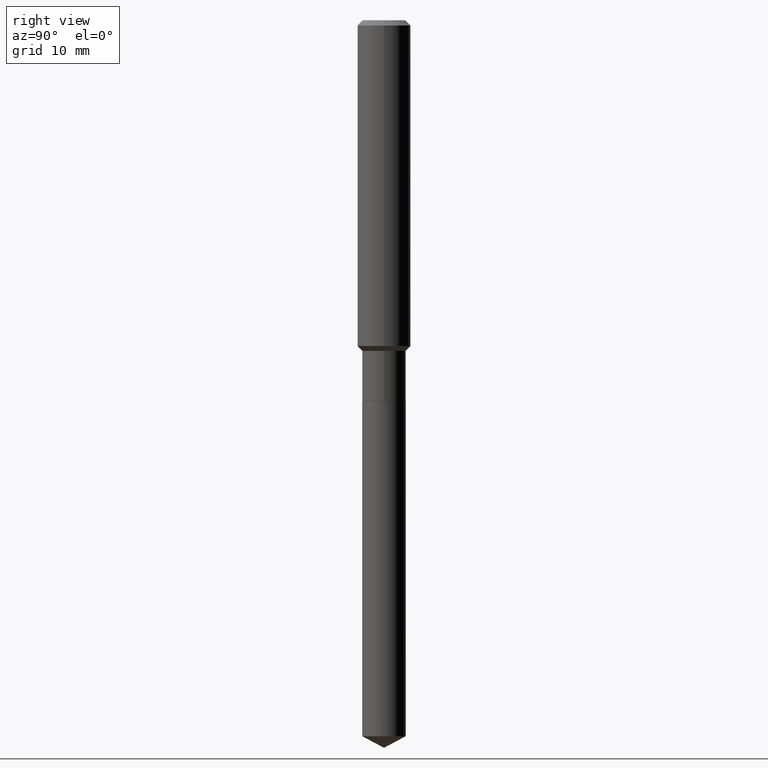
[diagram: clean part render]
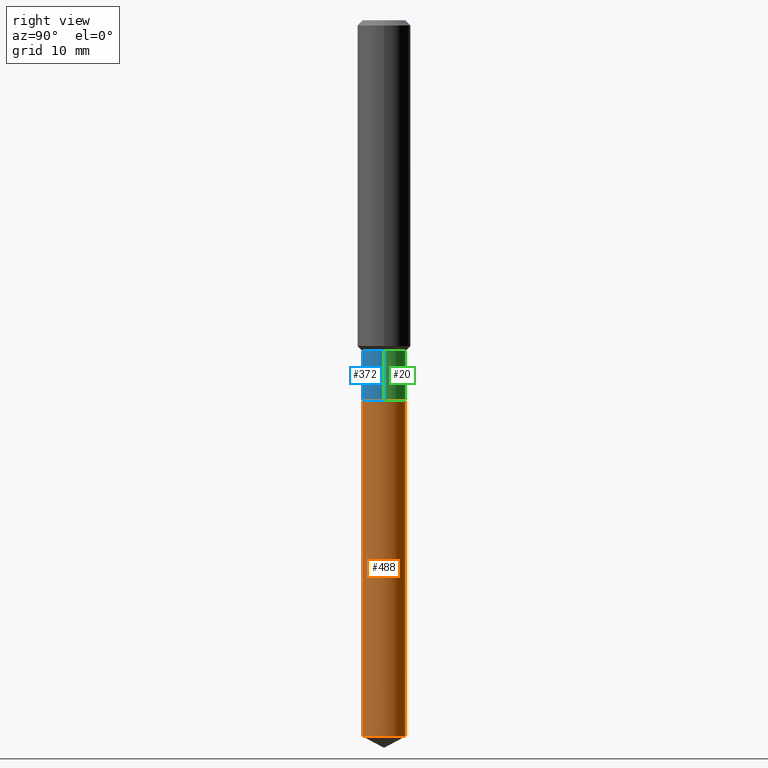
[diagram: same view with three faces highlighted in distinct colors, each labeled with its STEP entity id]
A machine part, right view with three faces highlighted in distinct colors.
Their STEP definitions:

[orange] entity #488 — the highlighted cylindrical surface (edge-blend (fillet) strip) has radius 2.4498 mm, axis along (-0, 0, 1).
#4 = CARTESIAN_POINT ( 'NONE',  ( -6.735067502627990177E-16, -0.09645000000000587825, -1.688899999999999846 ) ) ;
#5 = EDGE_LOOP ( 'NONE', ( #472, #388, #442, #458 ) ) ;
#17 = AXIS2_PLACEMENT_3D ( 'NONE', #416, #337, #485 ) ;
#36 = AXIS2_PLACEMENT_3D ( 'NONE', #353, #130, #281 ) ;
#50 = VECTOR ( 'NONE', #148, 39.37007874015748143 ) ;
#69 = LINE ( 'NONE', #335, #104 ) ;
#104 = VECTOR ( 'NONE', #214, 39.37007874015748143 ) ;
#119 = CARTESIAN_POINT ( 'NONE',  ( 6.853184686406942899E-16, 0.09644999999999409601, -1.688900000000000290 ) ) ;
#124 = VERTEX_POINT ( 'NONE', #455 ) ;
#129 = EDGE_CURVE ( 'NONE', #124, #307, #411, .T. ) ;
#130 = DIRECTION ( 'NONE',  ( -2.445459451531945961E-29, 3.491494735238948529E-15, 1.000000000000000000 ) ) ;
#134 = EDGE_CURVE ( 'NONE', #381, #305, #69, .T. ) ;
#144 = AXIS2_PLACEMENT_3D ( 'NONE', #168, #197, #279 ) ;
#148 = DIRECTION ( 'NONE',  ( -2.445459451531945961E-29, 3.491494735238948529E-15, 1.000000000000000000 ) ) ;
#168 = CARTESIAN_POINT ( 'NONE',  ( 4.130152266766077627E-29, -5.896762833172189046E-15, -1.688900000000000068 ) ) ;
#182 = CIRCLE ( 'NONE', #144, 0.09644999999999999407 ) ;
#183 = CARTESIAN_POINT ( 'NONE',  ( 6.853184686406577065E-16, 0.09644999999999409601, -1.688900000000000290 ) ) ;
#197 = DIRECTION ( 'NONE',  ( -2.445459451531945961E-29, 3.491494735238948529E-15, 1.000000000000000000 ) ) ;
#204 = EDGE_CURVE ( 'NONE', #381, #124, #259, .T. ) ;
#207 = CYLINDRICAL_SURFACE ( 'NONE', #36, 0.09644999999999999407 ) ;
#214 = DIRECTION ( 'NONE',  ( -2.445459451531945961E-29, 3.491494735238948529E-15, 1.000000000000000000 ) ) ;
#222 = CARTESIAN_POINT ( 'NONE',  ( -6.735067502627625329E-16, -0.09645000000001105467, -3.177016625316249954 ) ) ;
#259 = CIRCLE ( 'NONE', #17, 0.09644999999999999407 ) ;
#277 = FACE_OUTER_BOUND ( 'NONE', #5, .T. ) ;
#279 = DIRECTION ( 'NONE',  ( -6.982962677686265133E-15, -1.000000000000000000, 2.832398127179122126E-15 ) ) ;
#281 = DIRECTION ( 'NONE',  ( -6.982962677686265133E-15, -1.000000000000000000, 2.832398127179122126E-15 ) ) ;
#305 = VERTEX_POINT ( 'NONE', #4 ) ;
#307 = VERTEX_POINT ( 'NONE', #119 ) ;
#335 = CARTESIAN_POINT ( 'NONE',  ( -6.735067502627990177E-16, -0.09645000000000587825, -1.688899999999999846 ) ) ;
#337 = DIRECTION ( 'NONE',  ( -2.445459451531945961E-29, 3.491494735238948529E-15, 1.000000000000000000 ) ) ;
#353 = CARTESIAN_POINT ( 'NONE',  ( 4.130152266766077627E-29, -5.896762833172189046E-15, -1.688900000000000068 ) ) ;
#381 = VERTEX_POINT ( 'NONE', #222 ) ;
#388 = ORIENTED_EDGE ( 'NONE', *, *, #129, .T. ) ;
#411 = LINE ( 'NONE', #183, #50 ) ;
#416 = CARTESIAN_POINT ( 'NONE',  ( 7.769281133127524452E-29, -1.109251419588542783E-14, -3.177016625316250398 ) ) ;
#442 = ORIENTED_EDGE ( 'NONE', *, *, #468, .F. ) ;
#455 = CARTESIAN_POINT ( 'NONE',  ( 6.853184686406937969E-16, 0.09644999999998887796, -3.177016625316251286 ) ) ;
#458 = ORIENTED_EDGE ( 'NONE', *, *, #134, .F. ) ;
#468 = EDGE_CURVE ( 'NONE', #305, #307, #182, .T. ) ;
#472 = ORIENTED_EDGE ( 'NONE', *, *, #204, .T. ) ;
#485 = DIRECTION ( 'NONE',  ( -6.982962677686265133E-15, -1.000000000000000000, 5.664796254358244252E-15 ) ) ;
#488 = ADVANCED_FACE ( 'NONE', ( #277 ), #207, .T. ) ;

[blue] entity #372 — the highlighted cylindrical surface (edge-blend (fillet) strip) has radius 2.4498 mm, axis along (-0, 0, 1).
#3 = DIRECTION ( 'NONE',  ( -2.445468806185136597E-29, 3.491481338843145583E-15, 1.000000000000000000 ) ) ;
#7 = CARTESIAN_POINT ( 'NONE',  ( 4.128929532362984826E-29, -5.895017092502767543E-15, -1.688400000000000123 ) ) ;
#35 = AXIS2_PLACEMENT_3D ( 'NONE', #89, #194, #274 ) ;
#70 = EDGE_CURVE ( 'NONE', #467, #248, #480, .T. ) ;
#83 = EDGE_LOOP ( 'NONE', ( #314, #433, #162, #323 ) ) ;
#89 = CARTESIAN_POINT ( 'NONE',  ( 3.587747285554214477E-29, -5.122352272216779298E-15, -1.467100000000000071 ) ) ;
#116 = VECTOR ( 'NONE', #261, 39.37007874015748143 ) ;
#126 = CARTESIAN_POINT ( 'NONE',  ( 0.09644999999999999407, -6.568523842765608074E-15, -1.688400000000000123 ) ) ;
#140 = CARTESIAN_POINT ( 'NONE',  ( -0.09644999999999996632, 6.853184686406163899E-16, -4.744312894550855181E-30 ) ) ;
#157 = VERTEX_POINT ( 'NONE', #482 ) ;
#162 = ORIENTED_EDGE ( 'NONE', *, *, #70, .T. ) ;
#165 = EDGE_CURVE ( 'NONE', #405, #157, #253, .T. ) ;
#175 = DIRECTION ( 'NONE',  ( -2.445468806185136877E-29, 3.491481338843145188E-15, 1.000000000000000000 ) ) ;
#192 = CARTESIAN_POINT ( 'NONE',  ( 0.000000000000000000, 0.000000000000000000, 0.000000000000000000 ) ) ;
#194 = DIRECTION ( 'NONE',  ( -2.445468806185136597E-29, 3.491481338843145583E-15, 1.000000000000000000 ) ) ;
#248 = VERTEX_POINT ( 'NONE', #371 ) ;
#253 = LINE ( 'NONE', #140, #116 ) ;
#260 = AXIS2_PLACEMENT_3D ( 'NONE', #7, #311, #313 ) ;
#261 = DIRECTION ( 'NONE',  ( -2.445468806185136877E-29, 3.491481338843145188E-15, 1.000000000000000000 ) ) ;
#274 = DIRECTION ( 'NONE',  ( 1.000000000000000000, -6.982962677686267499E-15, 0.000000000000000000 ) ) ;
#300 = VECTOR ( 'NONE', #175, 39.37007874015748143 ) ;
#311 = DIRECTION ( 'NONE',  ( -2.445468806185136597E-29, 3.491481338843145583E-15, 1.000000000000000000 ) ) ;
#313 = DIRECTION ( 'NONE',  ( 1.000000000000000000, -6.982962677686264344E-15, 0.000000000000000000 ) ) ;
#314 = ORIENTED_EDGE ( 'NONE', *, *, #165, .F. ) ;
#323 = ORIENTED_EDGE ( 'NONE', *, *, #331, .F. ) ;
#331 = EDGE_CURVE ( 'NONE', #157, #248, #461, .T. ) ;
#368 = CARTESIAN_POINT ( 'NONE',  ( 0.09644999999999996632, -6.735067502628402357E-16, 4.703072500255178901E-30 ) ) ;
#371 = CARTESIAN_POINT ( 'NONE',  ( 0.09644999999999995244, -5.795859022479619040E-15, -1.467100000000000071 ) ) ;
#372 = ADVANCED_FACE ( 'NONE', ( #464 ), #387, .T. ) ;
#378 = DIRECTION ( 'NONE',  ( 1.000000000000000000, -6.982962677686267499E-15, 4.876176775795936353E-29 ) ) ;
#380 = CIRCLE ( 'NONE', #260, 0.09644999999999999407 ) ;
#387 = CYLINDRICAL_SURFACE ( 'NONE', #430, 0.09644999999999996632 ) ;
#401 = EDGE_CURVE ( 'NONE', #405, #467, #380, .T. ) ;
#405 = VERTEX_POINT ( 'NONE', #466 ) ;
#430 = AXIS2_PLACEMENT_3D ( 'NONE', #192, #3, #378 ) ;
#433 = ORIENTED_EDGE ( 'NONE', *, *, #401, .T. ) ;
#461 = CIRCLE ( 'NONE', #35, 0.09644999999999995244 ) ;
#464 = FACE_OUTER_BOUND ( 'NONE', #83, .T. ) ;
#466 = CARTESIAN_POINT ( 'NONE',  ( -0.09644999999999999407, -4.823366213719156537E-15, -1.688400000000000123 ) ) ;
#467 = VERTEX_POINT ( 'NONE', #126 ) ;
#480 = LINE ( 'NONE', #368, #300 ) ;
#482 = CARTESIAN_POINT ( 'NONE',  ( -0.09644999999999995244, -4.823366213719156537E-15, -1.467100000000000071 ) ) ;

[green] entity #20 — the highlighted cylindrical surface (edge-blend (fillet) strip) has radius 2.4498 mm, axis along (-0, 0, 1).
#16 = ORIENTED_EDGE ( 'NONE', *, *, #473, .T. ) ;
#20 = ADVANCED_FACE ( 'NONE', ( #286 ), #434, .T. ) ;
#22 = DIRECTION ( 'NONE',  ( -2.445468806185136597E-29, 3.491481338843145583E-15, 1.000000000000000000 ) ) ;
#24 = CARTESIAN_POINT ( 'NONE',  ( 4.128929532362984826E-29, -5.895017092502767543E-15, -1.688400000000000123 ) ) ;
#38 = CARTESIAN_POINT ( 'NONE',  ( 3.587747285554214477E-29, -5.122352272216779298E-15, -1.467100000000000071 ) ) ;
#48 = ORIENTED_EDGE ( 'NONE', *, *, #212, .F. ) ;
#55 = DIRECTION ( 'NONE',  ( 1.000000000000000000, -6.982962677686264344E-15, 0.000000000000000000 ) ) ;
#70 = EDGE_CURVE ( 'NONE', #467, #248, #480, .T. ) ;
#72 = DIRECTION ( 'NONE',  ( -2.445468806185136597E-29, 3.491481338843145583E-15, 1.000000000000000000 ) ) ;
#90 = ORIENTED_EDGE ( 'NONE', *, *, #70, .F. ) ;
#103 = DIRECTION ( 'NONE',  ( 1.000000000000000000, -6.982962677686267499E-15, 0.000000000000000000 ) ) ;
#116 = VECTOR ( 'NONE', #261, 39.37007874015748143 ) ;
#120 = ORIENTED_EDGE ( 'NONE', *, *, #165, .T. ) ;
#126 = CARTESIAN_POINT ( 'NONE',  ( 0.09644999999999999407, -6.568523842765608074E-15, -1.688400000000000123 ) ) ;
#128 = EDGE_LOOP ( 'NONE', ( #16, #120, #48, #90 ) ) ;
#135 = AXIS2_PLACEMENT_3D ( 'NONE', #321, #208, #241 ) ;
#140 = CARTESIAN_POINT ( 'NONE',  ( -0.09644999999999996632, 6.853184686406163899E-16, -4.744312894550855181E-30 ) ) ;
#143 = CIRCLE ( 'NONE', #224, 0.09644999999999995244 ) ;
#157 = VERTEX_POINT ( 'NONE', #482 ) ;
#165 = EDGE_CURVE ( 'NONE', #405, #157, #253, .T. ) ;
#175 = DIRECTION ( 'NONE',  ( -2.445468806185136877E-29, 3.491481338843145188E-15, 1.000000000000000000 ) ) ;
#208 = DIRECTION ( 'NONE',  ( -2.445468806185136597E-29, 3.491481338843145583E-15, 1.000000000000000000 ) ) ;
#212 = EDGE_CURVE ( 'NONE', #248, #157, #143, .T. ) ;
#224 = AXIS2_PLACEMENT_3D ( 'NONE', #38, #72, #103 ) ;
#225 = AXIS2_PLACEMENT_3D ( 'NONE', #24, #22, #55 ) ;
#241 = DIRECTION ( 'NONE',  ( 1.000000000000000000, -6.982962677686267499E-15, 4.876176775795936353E-29 ) ) ;
#248 = VERTEX_POINT ( 'NONE', #371 ) ;
#253 = LINE ( 'NONE', #140, #116 ) ;
#261 = DIRECTION ( 'NONE',  ( -2.445468806185136877E-29, 3.491481338843145188E-15, 1.000000000000000000 ) ) ;
#286 = FACE_OUTER_BOUND ( 'NONE', #128, .T. ) ;
#300 = VECTOR ( 'NONE', #175, 39.37007874015748143 ) ;
#309 = CIRCLE ( 'NONE', #225, 0.09644999999999999407 ) ;
#321 = CARTESIAN_POINT ( 'NONE',  ( 0.000000000000000000, 0.000000000000000000, 0.000000000000000000 ) ) ;
#368 = CARTESIAN_POINT ( 'NONE',  ( 0.09644999999999996632, -6.735067502628402357E-16, 4.703072500255178901E-30 ) ) ;
#371 = CARTESIAN_POINT ( 'NONE',  ( 0.09644999999999995244, -5.795859022479619040E-15, -1.467100000000000071 ) ) ;
#405 = VERTEX_POINT ( 'NONE', #466 ) ;
#434 = CYLINDRICAL_SURFACE ( 'NONE', #135, 0.09644999999999996632 ) ;
#466 = CARTESIAN_POINT ( 'NONE',  ( -0.09644999999999999407, -4.823366213719156537E-15, -1.688400000000000123 ) ) ;
#467 = VERTEX_POINT ( 'NONE', #126 ) ;
#473 = EDGE_CURVE ( 'NONE', #467, #405, #309, .T. ) ;
#480 = LINE ( 'NONE', #368, #300 ) ;
#482 = CARTESIAN_POINT ( 'NONE',  ( -0.09644999999999995244, -4.823366213719156537E-15, -1.467100000000000071 ) ) ;